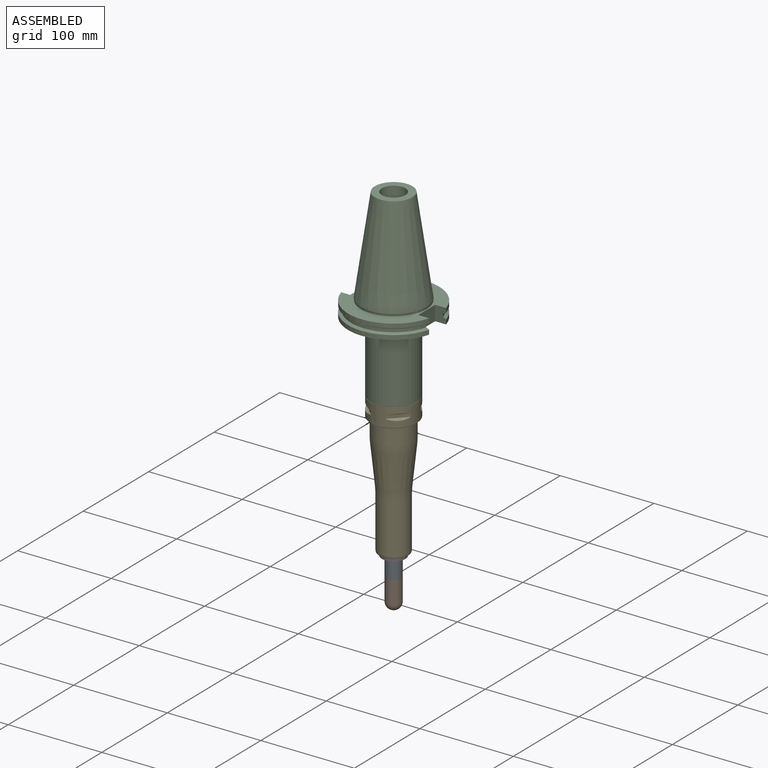
[diagram: assembled view]
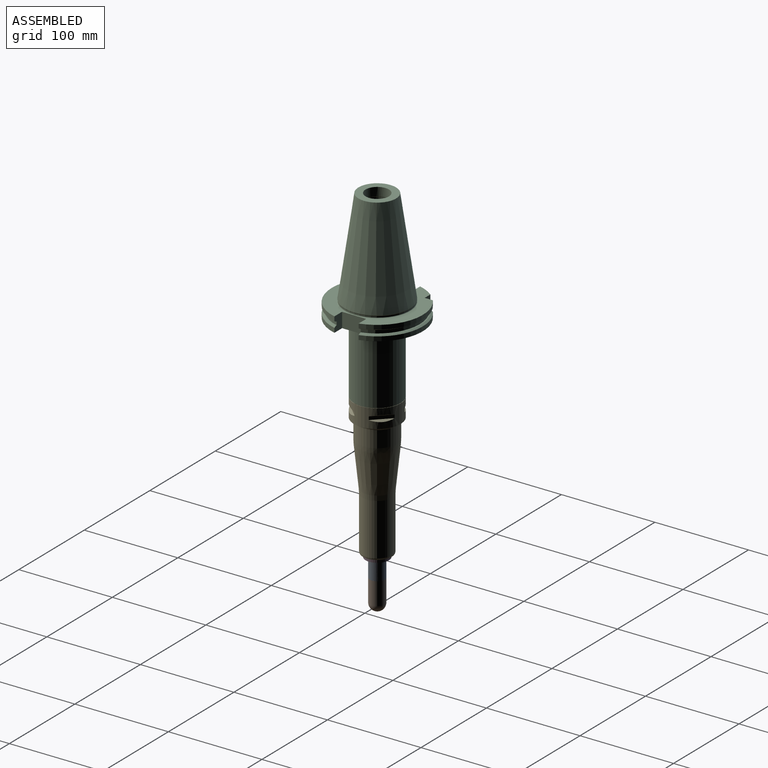
[diagram: assembled view, second angle]
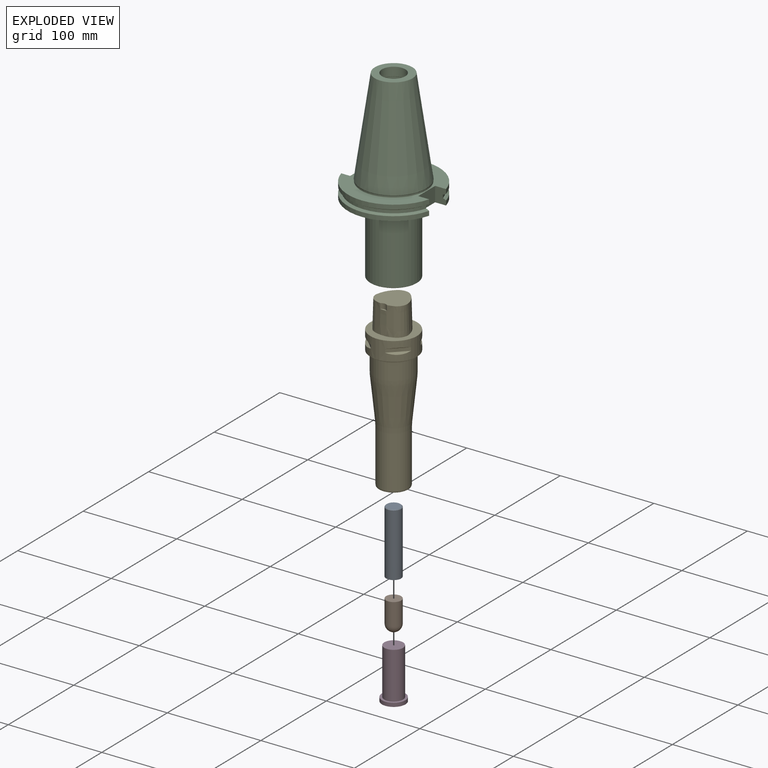
[diagram: exploded view]
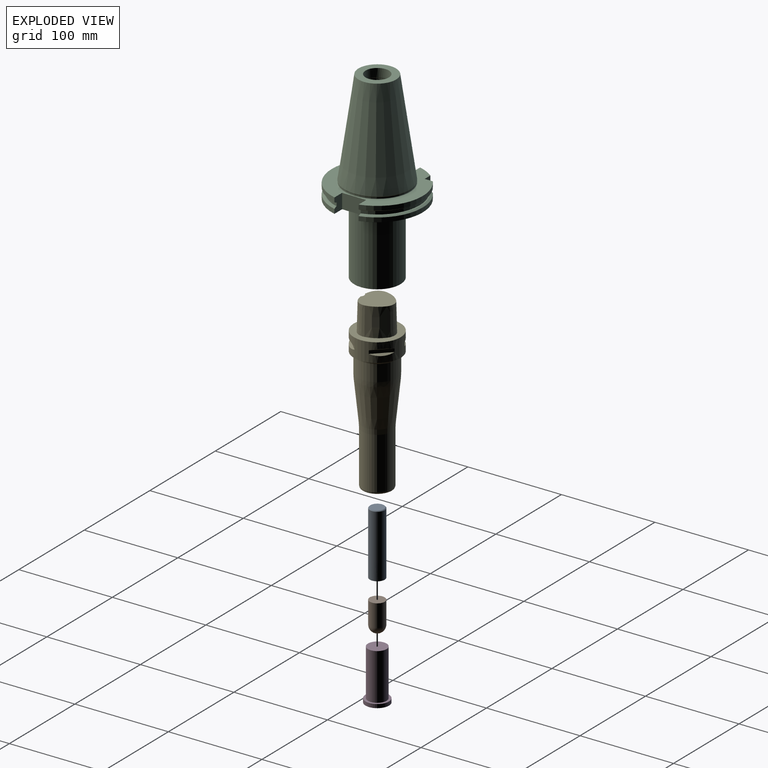
[diagram: exploded view, second angle]
ASSEMBLY  parts=5 mates=8
PART A: 5 faces, bbox 16x16x68 mm
  f0: cylinder r=8mm len=47.2mm, axis (0,0,1), area 2372.5mm2, adj f1,f3
  f1: cone r=8mm half-angle=45deg, axis (0,0,-1), area 54mm2, adj f0,f2
  f2: plane 14.4x14.4mm, normal (0,0,1), area 162.9mm2, adj f1
  f3: cylinder r=8mm len=20mm, axis (0,0,-1), area 1005.3mm2, adj f0,f4
  f4: plane 16x16mm, normal (0,0,-1), area 201.1mm2, adj f3
PART B: 3 faces, bbox 16x16x32 mm
  f0: plane 16x16mm, normal (0,0,1), area 201.1mm2, adj f1
  f1: cylinder r=8mm len=24mm, axis (0,0,-1), area 1206.4mm2, adj f0,f2
  f2: sphere r=8mm, area 402.1mm2, adj f1
PART C: 45 faces, bbox 94x97.5x196.6 mm
  f0: plane 25.81x15.85mm, normal (-1,0,0), area 409mm2, adj f5,f8,f22,f23
  f1: cylinder r=48.72mm len=93.97mm, axis (0,0,-1), area 592.5mm2, adj f5,f22,f24,f36
  f2: cylinder r=48.72mm len=76.84mm, axis (0,0,-1), area 446.2mm2, adj f5,f21,f25,f31
  f3: cylinder r=48.72mm len=16.95mm, axis (0,0,-1), area 89mm2, adj f5,f20,f23,f37
  f4: cylinder r=48.72mm len=93.97mm, axis (0,0,-1), area 598.8mm2, adj f8,f22,f24,f35
  f5: plane 97.45x93.97mm, normal (0,0,1), area 2896.8mm2, adj f0,f1,f2,f3,f14,f20,f21,f22
  f6: cylinder r=48.72mm len=76.84mm, axis (0,0,-1), area 451mm2, adj f8,f21,f25,f30
  f7: cylinder r=48.72mm len=16.95mm, axis (0,0,-1), area 89.9mm2, adj f8,f20,f23,f38
  f8: plane 97.45x93.97mm, normal (0,0,-1), area 4848mm2, adj f0,f4,f6,f7,f20,f21,f22,f23
  f9: cylinder r=12.51mm len=25.01mm, axis (0,0,-1), area 726.8mm2, adj f12,f15
  f10: cone r=35.03mm half-angle=30deg, axis (0,0,1), area 143.3mm2, adj f11,f13
  f11: cylinder r=34.7mm len=69.4mm, axis (0,0,-1), area 290.7mm2, adj f10,f14
  f12: plane 40.21x40.21mm, normal (0,0,1), area 778.9mm2, adj f9,f13
  f13: cone r=20.11mm half-angle=8.3deg, axis (0,0,-1), area 17906.8mm2, adj f10,f12
  f14: torus R=35.3mm, axis (0,0,-1), area 206.8mm2, adj f5,f11
  f15: cone r=12.51mm half-angle=27deg, axis (0,0,-1), area 39.3mm2, adj f9,f16
  f16: cylinder r=12.73mm len=25.46mm, axis (0,0,-1), area 158.1mm2, adj f15,f19
  f17: cone r=2.75mm half-angle=70deg, axis (0,0,1), area 368.6mm2, adj f18
  f18: cylinder r=10.5mm len=47.52mm, axis (0,0,-1), area 3135.1mm2, adj f17,f19
  f19: cone r=10.5mm half-angle=70deg, axis (0,0,1), area 173.2mm2, adj f16,f18
  f20: plane 15.85x8.66mm, normal (0,1,0), area 117.4mm2, adj f3,f5,f7,f8,f21,f37,f38,f39
  f21: plane 15.85x8.66mm, normal (-1,0,0), area 117.4mm2, adj f2,f5,f6,f8,f20,f27,f28,f29
  f22: plane 15.87x9.5mm, normal (0,1,0), area 134.4mm2, adj f0,f1,f4,f5,f8,f32,f33,f34
  f23: plane 15.87x9.5mm, normal (0,-1,0), area 134.4mm2, adj f0,f3,f5,f7,f8,f37,f38,f39
  f24: plane 15.87x11.7mm, normal (0,1,0), area 169.2mm2, adj f1,f4,f5,f8,f26,f32,f33,f34
  f25: plane 15.87x11.7mm, normal (0,-1,0), area 169.2mm2, adj f2,f5,f6,f8,f26,f27,f28,f29
  f26: plane 25.81x15.85mm, normal (1,0,0), area 409mm2, adj f5,f8,f24,f25
  f27: plane 74.48x33.56mm, normal (0,0,-1), area 87.9mm2, adj f21,f25,f28,f31
  f28: cylinder r=45.5mm len=73.48mm, axis (0,0,1), area 350.1mm2, adj f21,f25,f27,f29
  f29: plane 74.48x33.56mm, normal (0,0,1), area 87.9mm2, adj f21,f25,f28,f30
  f30: cone r=53.62mm half-angle=60deg, axis (0,0,-1), area 245.8mm2, adj f6,f21,f25,f29
  f31: cone r=46.46mm half-angle=60deg, axis (0,0,1), area 245.8mm2, adj f2,f21,f25,f27
  f32: plane 89.26x33.56mm, normal (0,0,-1), area 113.5mm2, adj f22,f24,f33,f36
  f33: cylinder r=45.5mm len=87.26mm, axis (0,0,1), area 449.6mm2, adj f22,f24,f32,f34
  f34: plane 89.26x33.56mm, normal (0,0,1), area 113.5mm2, adj f22,f24,f33,f35
  f35: cone r=53.62mm half-angle=60deg, axis (0,0,-1), area 322.8mm2, adj f4,f22,f24,f34
  f36: cone r=46.46mm half-angle=60deg, axis (0,0,1), area 322.8mm2, adj f1,f22,f24,f32
  f37: cone r=46.46mm half-angle=60deg, axis (0,0,1), area 50.2mm2, adj f3,f20,f23,f41
  f38: cone r=53.62mm half-angle=60deg, axis (0,0,-1), area 50.2mm2, adj f7,f20,f23,f39
  f39: plane 16.95x10.29mm, normal (0,0,1), area 18.6mm2, adj f20,f23,f38,f40
  f40: cylinder r=45.5mm len=16.95mm, axis (0,0,1), area 75mm2, adj f20,f23,f39,f41
  f41: plane 16.95x10.29mm, normal (0,0,-1), area 18.6mm2, adj f20,f23,f37,f40
  f42: plane 49.4x49.4mm, normal (0,0,-1), area 1916.7mm2, adj f44
  f43: cylinder r=25mm len=75.65mm, axis (0,0,1), area 11883.1mm2, adj f8,f44
  f44: cone r=25mm half-angle=45deg, axis (0,0,1), area 66.2mm2, adj f42,f43
PART D: 5 faces, bbox 25x25x54 mm
  f0: plane 20x20mm, normal (0,0,1), area 314.2mm2, adj f4
  f1: plane 25x25mm, normal (0,0,-1), area 490.9mm2, adj f2
  f2: cylinder r=12.5mm len=25mm, axis (0,0,1), area 314.2mm2, adj f1,f3
  f3: plane 25x25mm, normal (0,0,1), area 176.7mm2, adj f2,f4
  f4: cylinder r=10mm len=50mm, axis (0,0,1), area 3141.6mm2, adj f0,f3
PART E: 33 faces, bbox 66x66x181 mm
  f0: cylinder r=25mm len=50mm, axis (0,0,-1), area 2598.7mm2, adj f8,f11,f12,f13,f14,f15,f16,f17
  f1: cone r=28mm half-angle=1.4deg, axis (0,0,-1), area 607.9mm2, adj f2,f6,f7,f8
  f2: cone r=12mm half-angle=1.4deg, axis (0,0,-1), area 474.7mm2, adj f1,f3,f7,f8
  f3: cone r=28mm half-angle=1.4deg, axis (0,0,-1), area 606.9mm2, adj f2,f4,f7,f8
  f4: cone r=12mm half-angle=1.4deg, axis (0,0,-1), area 474.7mm2, adj f3,f5,f7,f8
  f5: cone r=28mm half-angle=1.4deg, axis (0,0,-1), area 568.6mm2, adj f4,f6,f7,f8,f9,f10
  f6: cone r=12mm half-angle=1.4deg, axis (0,0,-1), area 475.3mm2, adj f1,f5,f7,f8
  f7: plane 33.96x33.26mm, normal (0,0,1), area 866.8mm2, adj f1,f2,f3,f4,f5,f6,f10
  f8: plane 50x50mm, normal (0,0,1), area 1007.5mm2, adj f0,f1,f2,f3,f4,f5,f6
  f9: plane 7.18x1.75mm, normal (0,0,1), area 8.6mm2, adj f5,f10
  f10: cylinder r=5mm len=7.18mm, axis (0,0,-1), area 43.4mm2, adj f5,f7,f9
  f11: plane 16.31x16.31mm, normal (-0.35,-0.35,-0.87), area 50.6mm2, adj f0,f12
  f12: plane 16.31x16.31mm, normal (-0.71,-0.71,0), area 80.7mm2, adj f0,f11,f13
  f13: plane 16.31x16.31mm, normal (-0.35,-0.35,0.87), area 50.6mm2, adj f0,f12
  f14: plane 16.31x16.31mm, normal (-0.35,0.35,-0.87), area 50.6mm2, adj f0,f15
  f15: plane 16.31x16.31mm, normal (-0.71,0.71,0), area 80.7mm2, adj f0,f14,f16
  f16: plane 16.31x16.31mm, normal (-0.35,0.35,0.87), area 50.6mm2, adj f0,f15
  f17: plane 16.31x16.31mm, normal (0.35,0.35,-0.87), area 50.6mm2, adj f0,f18
  f18: plane 16.31x16.31mm, normal (0.71,0.71,0), area 80.7mm2, adj f0,f17,f19
  f19: plane 16.31x16.31mm, normal (0.35,0.35,0.87), area 50.6mm2, adj f0,f18
  f20: plane 16.31x16.31mm, normal (0.35,-0.35,-0.87), area 50.6mm2, adj f0,f21
  f21: plane 16.31x16.31mm, normal (0.71,-0.71,0), area 80.7mm2, adj f0,f20,f22
  f22: plane 16.31x16.31mm, normal (0.35,-0.35,0.87), area 50.6mm2, adj f0,f21
  f23: cone r=16mm half-angle=5.9deg, axis (0,0,1), area 5005.9mm2, adj f28,f29
  f24: cylinder r=21mm len=42mm, axis (0,0,1), area 2302.6mm2, adj f27,f28
  f25: cone r=21mm half-angle=76deg, axis (0,0,1), area 326.7mm2, adj f0,f27
  f26: cylinder r=16mm len=55.6mm, axis (0,0,1), area 5589.8mm2, adj f29,f30
  f27: torus R=23.5mm, axis (0,0,1), area 451.3mm2, adj f24,f25
  f28: revolved ~42x42mm, area 681.8mm2, adj f23,f24
  f29: torus R=66mm, axis (0,0,1), area 524.6mm2, adj f23,f26
  f30: cone r=15.75mm half-angle=12deg, axis (0,0,1), area 118.9mm2, adj f26,f32
  f31: plane 29.94x29.94mm, normal (0,0,-1), area 704mm2, adj f32
  f32: torus R=14.97mm, axis (0,0,1), area 105.6mm2, adj f30,f31
PLACE A t=(-43.84,-77.37,-259.6)mm
PLACE B t=(-43.84,-77.37,-259.6)mm
PLACE C t=(-43.84,-77.37,-57.6)mm
PLACE D t=(-43.84,-77.37,-303.6)mm
PLACE E t=(-43.84,-77.37,-152.6)mm
MATE planar D.f2 <-> A.f0  axis (0,0,-1) through (-43.84,-77.37,-307.6)mm
MATE cylindrical E.f0 <-> D.f2  axis (0,0,1) through (-43.84,-77.37,-274)mm
MATE planar E.f0 <-> D.f2  axis (0,0,-1) through (-43.84,-77.37,-303.6)mm
MATE cylindrical C.f1 <-> E.f0  axis (0,0,1) through (-43.84,-77.37,-152.3)mm
MATE cylindrical A.f0 <-> B.f1  axis (0,0,-1) through (-43.84,-77.37,-317.6)mm
MATE cylindrical A.f0 <-> D.f2  axis (0,0,1) through (-43.84,-77.37,-284)mm
MATE planar A.f1 <-> B.f1  axis (0,0,-1) through (-43.84,-77.37,-327.6)mm
MATE planar E.f8 <-> C.f1  axis (0,0,1) through (-61.42,-78.8,-152.6)mm
